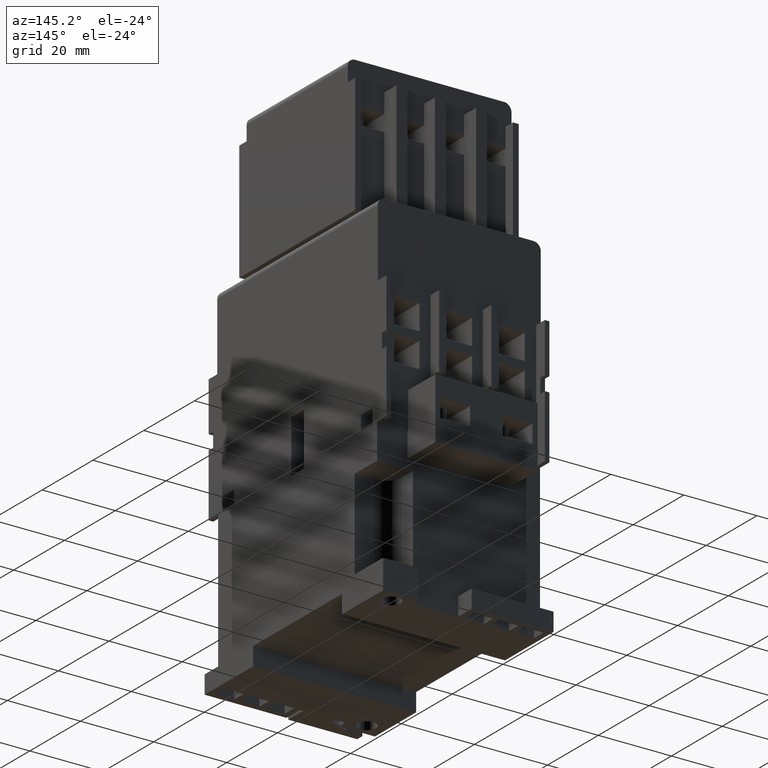
[diagram: clean part render]
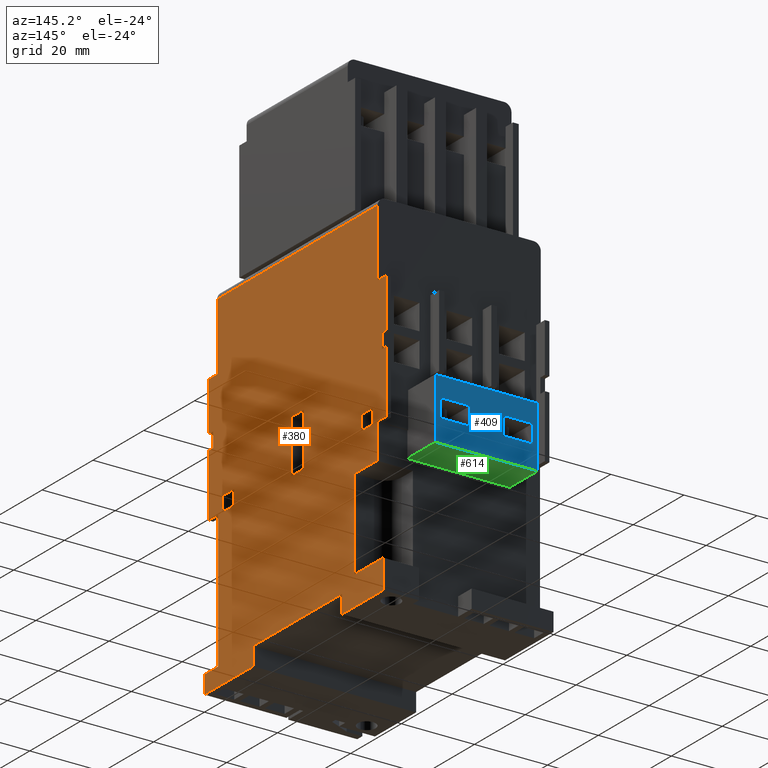
[diagram: same view with three faces highlighted in distinct colors, each labeled with its STEP entity id]
A machine part, auxiliary view with three faces highlighted in distinct colors.
Their STEP definitions:

[orange] entity #380 — the highlighted planar face has unit normal (1, 0, 0).
#163=FACE_BOUND('',#2069,.T.);
#164=FACE_BOUND('',#2070,.T.);
#165=FACE_BOUND('',#2071,.T.);
#166=FACE_BOUND('',#2072,.T.);
#380=ADVANCED_FACE('',(#163,#164,#165,#166),#989,.T.);
#989=PLANE('',#11495);
#2069=EDGE_LOOP('',(#3105,#3106,#3107,#3108,#3109,#3110,#3111,#3112,#3113,
#3114,#3115,#3116,#3117,#3118,#3119,#3120,#3121,#3122,#3123,#3124,#3125,
#3126,#3127,#3128,#3129,#3130,#3131,#3132,#3133,#3134));
#2070=EDGE_LOOP('',(#3135,#3136,#3137,#3138));
#2071=EDGE_LOOP('',(#3139,#3140,#3141,#3142));
#2072=EDGE_LOOP('',(#3143,#3144,#3145,#3146));
#3105=ORIENTED_EDGE('',*,*,#7302,.T.);
#3106=ORIENTED_EDGE('',*,*,#7303,.T.);
#3107=ORIENTED_EDGE('',*,*,#7304,.T.);
#3108=ORIENTED_EDGE('',*,*,#7305,.T.);
#3109=ORIENTED_EDGE('',*,*,#7306,.T.);
#3110=ORIENTED_EDGE('',*,*,#7307,.T.);
#3111=ORIENTED_EDGE('',*,*,#7308,.T.);
#3112=ORIENTED_EDGE('',*,*,#7309,.T.);
#3113=ORIENTED_EDGE('',*,*,#7310,.F.);
#3114=ORIENTED_EDGE('',*,*,#7311,.F.);
#3115=ORIENTED_EDGE('',*,*,#7312,.F.);
#3116=ORIENTED_EDGE('',*,*,#7313,.F.);
#3117=ORIENTED_EDGE('',*,*,#7314,.F.);
#3118=ORIENTED_EDGE('',*,*,#7315,.F.);
#3119=ORIENTED_EDGE('',*,*,#7316,.F.);
#3120=ORIENTED_EDGE('',*,*,#7317,.F.);
#3121=ORIENTED_EDGE('',*,*,#7318,.F.);
#3122=ORIENTED_EDGE('',*,*,#7319,.F.);
#3123=ORIENTED_EDGE('',*,*,#7320,.F.);
#3124=ORIENTED_EDGE('',*,*,#7321,.F.);
#3125=ORIENTED_EDGE('',*,*,#7322,.F.);
#3126=ORIENTED_EDGE('',*,*,#7323,.T.);
#3127=ORIENTED_EDGE('',*,*,#7324,.T.);
#3128=ORIENTED_EDGE('',*,*,#7325,.T.);
#3129=ORIENTED_EDGE('',*,*,#7326,.F.);
#3130=ORIENTED_EDGE('',*,*,#7327,.T.);
#3131=ORIENTED_EDGE('',*,*,#7328,.F.);
#3132=ORIENTED_EDGE('',*,*,#7329,.T.);
#3133=ORIENTED_EDGE('',*,*,#7330,.T.);
#3134=ORIENTED_EDGE('',*,*,#7331,.T.);
#3135=ORIENTED_EDGE('',*,*,#7332,.F.);
#3136=ORIENTED_EDGE('',*,*,#7333,.F.);
#3137=ORIENTED_EDGE('',*,*,#7334,.F.);
#3138=ORIENTED_EDGE('',*,*,#7335,.F.);
#3139=ORIENTED_EDGE('',*,*,#7336,.F.);
#3140=ORIENTED_EDGE('',*,*,#7337,.F.);
#3141=ORIENTED_EDGE('',*,*,#7338,.F.);
#3142=ORIENTED_EDGE('',*,*,#7339,.F.);
#3143=ORIENTED_EDGE('',*,*,#7340,.T.);
#3144=ORIENTED_EDGE('',*,*,#7341,.T.);
#3145=ORIENTED_EDGE('',*,*,#7342,.T.);
#3146=ORIENTED_EDGE('',*,*,#7343,.T.);
#6237=VERTEX_POINT('',#15504);
#6238=VERTEX_POINT('',#15505);
#6239=VERTEX_POINT('',#15507);
#6240=VERTEX_POINT('',#15509);
#6241=VERTEX_POINT('',#15511);
#6242=VERTEX_POINT('',#15513);
#6243=VERTEX_POINT('',#15515);
#6244=VERTEX_POINT('',#15517);
#6245=VERTEX_POINT('',#15519);
#6246=VERTEX_POINT('',#15521);
#6247=VERTEX_POINT('',#15523);
#6248=VERTEX_POINT('',#15525);
#6249=VERTEX_POINT('',#15527);
#6250=VERTEX_POINT('',#15529);
#6251=VERTEX_POINT('',#15531);
#6252=VERTEX_POINT('',#15533);
#6253=VERTEX_POINT('',#15535);
#6254=VERTEX_POINT('',#15537);
#6255=VERTEX_POINT('',#15539);
#6256=VERTEX_POINT('',#15541);
#6257=VERTEX_POINT('',#15543);
#6258=VERTEX_POINT('',#15545);
#6259=VERTEX_POINT('',#15547);
#6260=VERTEX_POINT('',#15549);
#6261=VERTEX_POINT('',#15551);
#6262=VERTEX_POINT('',#15553);
#6263=VERTEX_POINT('',#15555);
#6264=VERTEX_POINT('',#15557);
#6265=VERTEX_POINT('',#15559);
#6266=VERTEX_POINT('',#15561);
#6267=VERTEX_POINT('',#15564);
#6268=VERTEX_POINT('',#15565);
#6269=VERTEX_POINT('',#15567);
#6270=VERTEX_POINT('',#15569);
#6271=VERTEX_POINT('',#15572);
#6272=VERTEX_POINT('',#15573);
#6273=VERTEX_POINT('',#15575);
#6274=VERTEX_POINT('',#15577);
#6275=VERTEX_POINT('',#15580);
#6276=VERTEX_POINT('',#15581);
#6277=VERTEX_POINT('',#15583);
#6278=VERTEX_POINT('',#15585);
#7302=EDGE_CURVE('',#6237,#6238,#8865,.T.);
#7303=EDGE_CURVE('',#6238,#6239,#8866,.T.);
#7304=EDGE_CURVE('',#6239,#6240,#8867,.T.);
#7305=EDGE_CURVE('',#6240,#6241,#8868,.T.);
#7306=EDGE_CURVE('',#6241,#6242,#8869,.T.);
#7307=EDGE_CURVE('',#6242,#6243,#8870,.T.);
#7308=EDGE_CURVE('',#6243,#6244,#8871,.T.);
#7309=EDGE_CURVE('',#6244,#6245,#8872,.T.);
#7310=EDGE_CURVE('',#6246,#6245,#8873,.T.);
#7311=EDGE_CURVE('',#6247,#6246,#8874,.T.);
#7312=EDGE_CURVE('',#6248,#6247,#8875,.T.);
#7313=EDGE_CURVE('',#6249,#6248,#8876,.T.);
#7314=EDGE_CURVE('',#6250,#6249,#8877,.T.);
#7315=EDGE_CURVE('',#6251,#6250,#8878,.T.);
#7316=EDGE_CURVE('',#6252,#6251,#8879,.T.);
#7317=EDGE_CURVE('',#6253,#6252,#8880,.T.);
#7318=EDGE_CURVE('',#6254,#6253,#8881,.T.);
#7319=EDGE_CURVE('',#6255,#6254,#8882,.T.);
#7320=EDGE_CURVE('',#6256,#6255,#8883,.T.);
#7321=EDGE_CURVE('',#6257,#6256,#8884,.T.);
#7322=EDGE_CURVE('',#6258,#6257,#8885,.T.);
#7323=EDGE_CURVE('',#6258,#6259,#8886,.T.);
#7324=EDGE_CURVE('',#6259,#6260,#8887,.T.);
#7325=EDGE_CURVE('',#6260,#6261,#8888,.T.);
#7326=EDGE_CURVE('',#6262,#6261,#8889,.T.);
#7327=EDGE_CURVE('',#6262,#6263,#8890,.T.);
#7328=EDGE_CURVE('',#6264,#6263,#8891,.T.);
#7329=EDGE_CURVE('',#6264,#6265,#8892,.T.);
#7330=EDGE_CURVE('',#6265,#6266,#8893,.T.);
#7331=EDGE_CURVE('',#6266,#6237,#8894,.T.);
#7332=EDGE_CURVE('',#6267,#6268,#8895,.T.);
#7333=EDGE_CURVE('',#6269,#6267,#8896,.T.);
#7334=EDGE_CURVE('',#6270,#6269,#8897,.T.);
#7335=EDGE_CURVE('',#6268,#6270,#8898,.T.);
#7336=EDGE_CURVE('',#6271,#6272,#8899,.T.);
#7337=EDGE_CURVE('',#6273,#6271,#8900,.T.);
#7338=EDGE_CURVE('',#6274,#6273,#8901,.T.);
#7339=EDGE_CURVE('',#6272,#6274,#8902,.T.);
#7340=EDGE_CURVE('',#6275,#6276,#8903,.T.);
#7341=EDGE_CURVE('',#6276,#6277,#8904,.T.);
#7342=EDGE_CURVE('',#6277,#6278,#8905,.T.);
#7343=EDGE_CURVE('',#6278,#6275,#8906,.T.);
#8865=LINE('',#15503,#10216);
#8866=LINE('',#15506,#10217);
#8867=LINE('',#15508,#10218);
#8868=LINE('',#15510,#10219);
#8869=LINE('',#15512,#10220);
#8870=LINE('',#15514,#10221);
#8871=LINE('',#15516,#10222);
#8872=LINE('',#15518,#10223);
#8873=LINE('',#15520,#10224);
#8874=LINE('',#15522,#10225);
#8875=LINE('',#15524,#10226);
#8876=LINE('',#15526,#10227);
#8877=LINE('',#15528,#10228);
#8878=LINE('',#15530,#10229);
#8879=LINE('',#15532,#10230);
#8880=LINE('',#15534,#10231);
#8881=LINE('',#15536,#10232);
#8882=LINE('',#15538,#10233);
#8883=LINE('',#15540,#10234);
#8884=LINE('',#15542,#10235);
#8885=LINE('',#15544,#10236);
#8886=LINE('',#15546,#10237);
#8887=LINE('',#15548,#10238);
#8888=LINE('',#15550,#10239);
#8889=LINE('',#15552,#10240);
#8890=LINE('',#15554,#10241);
#8891=LINE('',#15556,#10242);
#8892=LINE('',#15558,#10243);
#8893=LINE('',#15560,#10244);
#8894=LINE('',#15562,#10245);
#8895=LINE('',#15563,#10246);
#8896=LINE('',#15566,#10247);
#8897=LINE('',#15568,#10248);
#8898=LINE('',#15570,#10249);
#8899=LINE('',#15571,#10250);
#8900=LINE('',#15574,#10251);
#8901=LINE('',#15576,#10252);
#8902=LINE('',#15578,#10253);
#8903=LINE('',#15579,#10254);
#8904=LINE('',#15582,#10255);
#8905=LINE('',#15584,#10256);
#8906=LINE('',#15586,#10257);
#10216=VECTOR('',#12421,1.);
#10217=VECTOR('',#12422,1.);
#10218=VECTOR('',#12423,1.);
#10219=VECTOR('',#12424,1.);
#10220=VECTOR('',#12425,1.);
#10221=VECTOR('',#12426,1.);
#10222=VECTOR('',#12427,1.);
#10223=VECTOR('',#12428,1.);
#10224=VECTOR('',#12429,1.);
#10225=VECTOR('',#12430,1.);
#10226=VECTOR('',#12431,1.);
#10227=VECTOR('',#12432,1.);
#10228=VECTOR('',#12433,1.);
#10229=VECTOR('',#12434,1.);
#10230=VECTOR('',#12435,1.);
#10231=VECTOR('',#12436,1.);
#10232=VECTOR('',#12437,1.);
#10233=VECTOR('',#12438,1.);
#10234=VECTOR('',#12439,1.);
#10235=VECTOR('',#12440,1.);
#10236=VECTOR('',#12441,1.);
#10237=VECTOR('',#12442,1.);
#10238=VECTOR('',#12443,1.);
#10239=VECTOR('',#12444,1.);
#10240=VECTOR('',#12445,1.);
#10241=VECTOR('',#12446,1.);
#10242=VECTOR('',#12447,1.);
#10243=VECTOR('',#12448,1.);
#10244=VECTOR('',#12449,1.);
#10245=VECTOR('',#12450,1.);
#10246=VECTOR('',#12451,1.);
#10247=VECTOR('',#12452,1.);
#10248=VECTOR('',#12453,1.);
#10249=VECTOR('',#12454,1.);
#10250=VECTOR('',#12455,1.);
#10251=VECTOR('',#12456,1.);
#10252=VECTOR('',#12457,1.);
#10253=VECTOR('',#12458,1.);
#10254=VECTOR('',#12459,1.);
#10255=VECTOR('',#12460,1.);
#10256=VECTOR('',#12461,1.);
#10257=VECTOR('',#12462,1.);
#11495=AXIS2_PLACEMENT_3D('',#15587,#12463,#12464);
#12421=DIRECTION('',(0.,0.,1.));
#12422=DIRECTION('',(0.,-1.,0.));
#12423=DIRECTION('',(0.,0.,1.));
#12424=DIRECTION('',(0.,1.,0.));
#12425=DIRECTION('',(0.,0.,1.));
#12426=DIRECTION('',(0.,-1.,0.));
#12427=DIRECTION('',(0.,0.,1.));
#12428=DIRECTION('',(0.,-1.,0.));
#12429=DIRECTION('',(0.,0.,1.));
#12430=DIRECTION('',(0.,1.,0.));
#12431=DIRECTION('',(0.,0.,1.));
#12432=DIRECTION('',(0.,-1.,0.));
#12433=DIRECTION('',(0.,0.,1.));
#12434=DIRECTION('',(0.,1.,0.));
#12435=DIRECTION('',(0.,0.,1.));
#12436=DIRECTION('',(0.,-1.,0.));
#12437=DIRECTION('',(0.,3.72058654364999E-016,1.));
#12438=DIRECTION('',(0.,1.,0.));
#12439=DIRECTION('',(0.,0.,1.));
#12440=DIRECTION('',(0.,-1.,1.81646437275058E-016));
#12441=DIRECTION('',(0.,0.,-1.));
#12442=DIRECTION('',(0.,1.,1.22464679914735E-016));
#12443=DIRECTION('',(0.,0.,-1.));
#12444=DIRECTION('',(0.,1.,1.81646437275058E-016));
#12445=DIRECTION('',(0.,0.,-1.));
#12446=DIRECTION('',(0.,-1.,0.));
#12447=DIRECTION('',(0.,0.,-1.));
#12448=DIRECTION('',(0.,1.,4.38553687746945E-016));
#12449=DIRECTION('',(0.,-3.72058654364999E-016,1.));
#12450=DIRECTION('',(0.,1.,0.));
#12451=DIRECTION('',(0.,0.,-1.));
#12452=DIRECTION('',(0.,-1.,0.));
#12453=DIRECTION('',(0.,0.,1.));
#12454=DIRECTION('',(0.,1.,0.));
#12455=DIRECTION('',(0.,-1.4954512723938E-016,-1.));
#12456=DIRECTION('',(0.,-1.,0.));
#12457=DIRECTION('',(0.,5.9818050895752E-017,1.));
#12458=DIRECTION('',(0.,1.,0.));
#12459=DIRECTION('',(0.,0.,1.));
#12460=DIRECTION('',(0.,1.,0.));
#12461=DIRECTION('',(0.,0.,-1.));
#12462=DIRECTION('',(0.,-1.,0.));
#12463=DIRECTION('',(1.,0.,0.));
#12464=DIRECTION('',(0.,0.,-1.));
#15503=CARTESIAN_POINT('',(22.3,35.,37.3));
#15504=CARTESIAN_POINT('',(22.3,35.,37.3));
#15505=CARTESIAN_POINT('',(22.3,35.,54.5));
#15506=CARTESIAN_POINT('',(22.3,35.,54.5));
#15507=CARTESIAN_POINT('',(22.3,33.25,54.5));
#15508=CARTESIAN_POINT('',(22.3,33.25,54.5));
#15509=CARTESIAN_POINT('',(22.3,33.25,58.5));
#15510=CARTESIAN_POINT('',(22.3,33.25,58.5));
#15511=CARTESIAN_POINT('',(22.3,35.,58.5));
#15512=CARTESIAN_POINT('',(22.3,35.,37.3));
#15513=CARTESIAN_POINT('',(22.3,35.,72.));
#15514=CARTESIAN_POINT('',(22.3,35.,72.));
#15515=CARTESIAN_POINT('',(22.3,31.6,72.));
#15516=CARTESIAN_POINT('',(22.3,31.6,72.));
#15517=CARTESIAN_POINT('',(22.3,31.6,90.5));
#15518=CARTESIAN_POINT('',(22.3,1.83880688453542E-012,90.5));
#15519=CARTESIAN_POINT('',(22.3,-31.6,90.5));
#15520=CARTESIAN_POINT('',(22.3,-31.6,72.));
#15521=CARTESIAN_POINT('',(22.3,-31.6,72.));
#15522=CARTESIAN_POINT('',(22.3,-35.,72.));
#15523=CARTESIAN_POINT('',(22.3,-35.,72.));
#15524=CARTESIAN_POINT('',(22.3,-35.,37.3));
#15525=CARTESIAN_POINT('',(22.3,-34.9999999999988,58.5000000000003));
#15526=CARTESIAN_POINT('',(22.3,-33.2499999999988,58.5000000000003));
#15527=CARTESIAN_POINT('',(22.3,-33.2499999999988,58.5000000000003));
#15528=CARTESIAN_POINT('',(22.3,-33.2499999999988,54.5000000000003));
#15529=CARTESIAN_POINT('',(22.3,-33.2499999999988,54.5000000000003));
#15530=CARTESIAN_POINT('',(22.3,-34.9999999999988,54.5000000000003));
#15531=CARTESIAN_POINT('',(22.3,-34.9999999999988,54.5000000000003));
#15532=CARTESIAN_POINT('',(22.3,-35.,37.3));
#15533=CARTESIAN_POINT('',(22.3,-35.,37.3));
#15534=CARTESIAN_POINT('',(22.3,-31.3,37.3));
#15535=CARTESIAN_POINT('',(22.3,-31.3,37.3));
#15536=CARTESIAN_POINT('',(22.3,-31.3,7.10995103104489E-015));
#15537=CARTESIAN_POINT('',(22.3,-31.3,7.10995103104489E-015));
#15538=CARTESIAN_POINT('',(22.3,-36.6,7.10995103104489E-015));
#15539=CARTESIAN_POINT('',(22.3,-36.6,6.93889390390723E-015));
#15540=CARTESIAN_POINT('',(22.3,-36.6,-4.99999999999999));
#15541=CARTESIAN_POINT('',(22.3,-36.6,-4.99999999999999));
#15542=CARTESIAN_POINT('',(22.3,-17.5,-5.));
#15543=CARTESIAN_POINT('',(22.3,-17.5,-5.));
#15544=CARTESIAN_POINT('',(22.3,-17.5,2.14313189850787E-015));
#15545=CARTESIAN_POINT('',(22.3,-17.5,2.14313189850787E-015));
#15546=CARTESIAN_POINT('',(22.3,0.,0.));
#15547=CARTESIAN_POINT('',(22.3,17.5,2.14313189850787E-015));
#15548=CARTESIAN_POINT('',(22.3,17.5,2.14313189850787E-015));
#15549=CARTESIAN_POINT('',(22.3,17.5,-5.));
#15550=CARTESIAN_POINT('',(22.3,17.5,-5.));
#15551=CARTESIAN_POINT('',(22.3,33.7,-5.));
#15552=CARTESIAN_POINT('',(22.3,33.7,3.));
#15553=CARTESIAN_POINT('',(22.3,33.7,3.));
#15554=CARTESIAN_POINT('',(22.3,33.7,3.));
#15555=CARTESIAN_POINT('',(22.3,22.4,2.99999999999999));
#15556=CARTESIAN_POINT('',(22.3,22.4,27.75));
#15557=CARTESIAN_POINT('',(22.3,22.4,27.75));
#15558=CARTESIAN_POINT('',(22.3,22.4,27.75));
#15559=CARTESIAN_POINT('',(22.3,31.3,27.75));
#15560=CARTESIAN_POINT('',(22.3,31.3,7.10995103104489E-015));
#15561=CARTESIAN_POINT('',(22.3,31.3,37.3));
#15562=CARTESIAN_POINT('',(22.3,31.3,37.3));
#15563=CARTESIAN_POINT('',(22.3,25.,41.3));
#15564=CARTESIAN_POINT('',(22.3,25.,41.3));
#15565=CARTESIAN_POINT('',(22.3,25.,37.3));
#15566=CARTESIAN_POINT('',(22.3,29.5,41.3));
#15567=CARTESIAN_POINT('',(22.3,29.5,41.3));
#15568=CARTESIAN_POINT('',(22.3,29.5,37.3));
#15569=CARTESIAN_POINT('',(22.3,29.5,37.3));
#15570=CARTESIAN_POINT('',(22.3,25.,37.3));
#15571=CARTESIAN_POINT('',(22.3,-2.49999999999999,50.8));
#15572=CARTESIAN_POINT('',(22.3,-2.49999999999999,50.8));
#15573=CARTESIAN_POINT('',(22.3,-2.49999999999999,36.3));
#15574=CARTESIAN_POINT('',(22.3,2.50000000000001,50.8));
#15575=CARTESIAN_POINT('',(22.3,2.50000000000001,50.8));
#15576=CARTESIAN_POINT('',(22.3,2.50000000000001,36.3));
#15577=CARTESIAN_POINT('',(22.3,2.50000000000001,36.3));
#15578=CARTESIAN_POINT('',(22.3,-2.49999999999999,36.3));
#15579=CARTESIAN_POINT('',(22.3,-29.5,37.3));
#15580=CARTESIAN_POINT('',(22.3,-29.5,37.3));
#15581=CARTESIAN_POINT('',(22.3,-29.5,41.3));
#15582=CARTESIAN_POINT('',(22.3,-29.5,41.3));
#15583=CARTESIAN_POINT('',(22.3,-25.,41.3));
#15584=CARTESIAN_POINT('',(22.3,-25.,41.3));
#15585=CARTESIAN_POINT('',(22.3,-25.,37.3));
#15586=CARTESIAN_POINT('',(22.3,-25.,37.3));
#15587=CARTESIAN_POINT('',(22.3,1.83880688453542E-012,92.5));

[blue] entity #409 — the highlighted planar face has unit normal (0, 1, 0).
#203=FACE_BOUND('',#2126,.T.);
#204=FACE_BOUND('',#2127,.T.);
#205=FACE_BOUND('',#2128,.T.);
#409=ADVANCED_FACE('',(#203,#204,#205),#1018,.T.);
#1018=PLANE('',#11549);
#2126=EDGE_LOOP('',(#3419,#3420,#3421,#3422));
#2127=EDGE_LOOP('',(#3423,#3424,#3425,#3426));
#2128=EDGE_LOOP('',(#3427,#3428,#3429,#3430));
#3419=ORIENTED_EDGE('',*,*,#7575,.T.);
#3420=ORIENTED_EDGE('',*,*,#7576,.T.);
#3421=ORIENTED_EDGE('',*,*,#7577,.T.);
#3422=ORIENTED_EDGE('',*,*,#7548,.T.);
#3423=ORIENTED_EDGE('',*,*,#7578,.F.);
#3424=ORIENTED_EDGE('',*,*,#7579,.F.);
#3425=ORIENTED_EDGE('',*,*,#7511,.F.);
#3426=ORIENTED_EDGE('',*,*,#7580,.F.);
#3427=ORIENTED_EDGE('',*,*,#7581,.T.);
#3428=ORIENTED_EDGE('',*,*,#7506,.T.);
#3429=ORIENTED_EDGE('',*,*,#7582,.T.);
#3430=ORIENTED_EDGE('',*,*,#7501,.T.);
#6405=VERTEX_POINT('',#15884);
#6406=VERTEX_POINT('',#15885);
#6410=VERTEX_POINT('',#15895);
#6411=VERTEX_POINT('',#15896);
#6415=VERTEX_POINT('',#15906);
#6416=VERTEX_POINT('',#15907);
#6449=VERTEX_POINT('',#15979);
#6452=VERTEX_POINT('',#15984);
#6472=VERTEX_POINT('',#16041);
#6473=VERTEX_POINT('',#16043);
#6474=VERTEX_POINT('',#16046);
#6475=VERTEX_POINT('',#16047);
#7501=EDGE_CURVE('',#6405,#6406,#9056,.T.);
#7506=EDGE_CURVE('',#6410,#6411,#9060,.T.);
#7511=EDGE_CURVE('',#6415,#6416,#9064,.T.);
#7548=EDGE_CURVE('',#6449,#6452,#9087,.T.);
#7575=EDGE_CURVE('',#6452,#6472,#9113,.T.);
#7576=EDGE_CURVE('',#6472,#6473,#9114,.T.);
#7577=EDGE_CURVE('',#6473,#6449,#9115,.T.);
#7578=EDGE_CURVE('',#6474,#6475,#9116,.T.);
#7579=EDGE_CURVE('',#6416,#6474,#9117,.T.);
#7580=EDGE_CURVE('',#6475,#6415,#9118,.T.);
#7581=EDGE_CURVE('',#6406,#6410,#9119,.T.);
#7582=EDGE_CURVE('',#6411,#6405,#9120,.T.);
#9056=LINE('',#15883,#10407);
#9060=LINE('',#15894,#10411);
#9064=LINE('',#15905,#10415);
#9087=LINE('',#15985,#10438);
#9113=LINE('',#16040,#10464);
#9114=LINE('',#16042,#10465);
#9115=LINE('',#16044,#10466);
#9116=LINE('',#16045,#10467);
#9117=LINE('',#16048,#10468);
#9118=LINE('',#16049,#10469);
#9119=LINE('',#16050,#10470);
#9120=LINE('',#16051,#10471);
#10407=VECTOR('',#12654,1.);
#10411=VECTOR('',#12662,1.);
#10415=VECTOR('',#12670,1.);
#10438=VECTOR('',#12731,1.);
#10464=VECTOR('',#12777,1.);
#10465=VECTOR('',#12778,1.);
#10466=VECTOR('',#12779,1.);
#10467=VECTOR('',#12780,1.);
#10468=VECTOR('',#12781,1.);
#10469=VECTOR('',#12782,1.);
#10470=VECTOR('',#12783,1.);
#10471=VECTOR('',#12784,1.);
#11549=AXIS2_PLACEMENT_3D('',#16052,#12785,#12786);
#12654=DIRECTION('',(1.,0.,0.));
#12662=DIRECTION('',(-1.,0.,0.));
#12670=DIRECTION('',(1.,0.,0.));
#12731=DIRECTION('',(1.,0.,4.95635278850516E-016));
#12777=DIRECTION('',(0.,4.15502628976481E-016,-1.));
#12778=DIRECTION('',(-1.,0.,0.));
#12779=DIRECTION('',(0.,-4.15502628976481E-016,1.));
#12780=DIRECTION('',(-1.,0.,-8.56653568383608E-016));
#12781=DIRECTION('',(0.,0.,-1.));
#12782=DIRECTION('',(0.,0.,1.));
#12783=DIRECTION('',(0.,0.,1.));
#12784=DIRECTION('',(0.,0.,-1.));
#12785=DIRECTION('',(0.,1.,4.15502628976481E-016));
#12786=DIRECTION('',(0.,-4.16333634234434E-016,1.));
#15883=CARTESIAN_POINT('',(4.5,42.3,36.7));
#15884=CARTESIAN_POINT('',(4.5,42.3,36.7));
#15885=CARTESIAN_POINT('',(12.6,42.3,36.7));
#15894=CARTESIAN_POINT('',(12.6,42.3,41.7));
#15895=CARTESIAN_POINT('',(12.6,42.3,41.7));
#15896=CARTESIAN_POINT('',(4.5,42.3,41.7));
#15905=CARTESIAN_POINT('',(-12.6,42.3,41.7));
#15906=CARTESIAN_POINT('',(-12.6,42.3,41.7));
#15907=CARTESIAN_POINT('',(-4.5,42.3,41.7));
#15979=CARTESIAN_POINT('',(-14.,42.3,47.0999999999998));
#15984=CARTESIAN_POINT('',(14.,42.3,47.0999999999998));
#15985=CARTESIAN_POINT('',(-14.,42.3,47.0999999999998));
#16040=CARTESIAN_POINT('',(14.,42.3,47.0999999999998));
#16041=CARTESIAN_POINT('',(14.,42.3,30.3999999999998));
#16042=CARTESIAN_POINT('',(14.,42.3,30.3999999999998));
#16043=CARTESIAN_POINT('',(-14.,42.3,30.3999999999998));
#16044=CARTESIAN_POINT('',(-14.,42.3,30.3999999999998));
#16045=CARTESIAN_POINT('',(-4.5,42.3,36.7));
#16046=CARTESIAN_POINT('',(-4.5,42.3,36.7));
#16047=CARTESIAN_POINT('',(-12.6,42.3,36.7));
#16048=CARTESIAN_POINT('',(-4.5,42.3,41.7));
#16049=CARTESIAN_POINT('',(-12.6,42.3,36.7));
#16050=CARTESIAN_POINT('',(12.6,42.3,36.7));
#16051=CARTESIAN_POINT('',(4.5,42.3,41.7));
#16052=CARTESIAN_POINT('',(14.,42.3,30.3999999999998));

[green] entity #614 — the highlighted planar face has unit normal (0, 0, 1).
#614=ADVANCED_FACE('',(#1749),#1211,.F.);
#1211=PLANE('',#11822);
#1749=FACE_OUTER_BOUND('',#2359,.T.);
#2359=EDGE_LOOP('',(#4409,#4410,#4411,#4412));
#4409=ORIENTED_EDGE('',*,*,#8019,.T.);
#4410=ORIENTED_EDGE('',*,*,#7430,.T.);
#4411=ORIENTED_EDGE('',*,*,#8020,.F.);
#4412=ORIENTED_EDGE('',*,*,#7576,.F.);
#6349=VERTEX_POINT('',#15751);
#6350=VERTEX_POINT('',#15753);
#6472=VERTEX_POINT('',#16041);
#6473=VERTEX_POINT('',#16043);
#7430=EDGE_CURVE('',#6350,#6349,#8987,.T.);
#7576=EDGE_CURVE('',#6472,#6473,#9114,.T.);
#8019=EDGE_CURVE('',#6472,#6350,#9489,.T.);
#8020=EDGE_CURVE('',#6473,#6349,#9490,.T.);
#8987=LINE('',#15752,#10338);
#9114=LINE('',#16042,#10465);
#9489=LINE('',#16952,#10840);
#9490=LINE('',#16953,#10841);
#10338=VECTOR('',#12571,1.);
#10465=VECTOR('',#12778,1.);
#10840=VECTOR('',#13699,1.);
#10841=VECTOR('',#13700,1.);
#11822=AXIS2_PLACEMENT_3D('',#16954,#13701,#13702);
#12571=DIRECTION('',(-1.,0.,0.));
#12778=DIRECTION('',(-1.,0.,0.));
#13699=DIRECTION('',(0.,-1.,1.98789933463288E-014));
#13700=DIRECTION('',(0.,-1.,1.98789933463288E-014));
#13701=DIRECTION('',(0.,1.98789933463288E-014,1.));
#13702=DIRECTION('',(0.,-1.,1.98799310346942E-014));
#15751=CARTESIAN_POINT('',(-14.,31.3,30.4));
#15752=CARTESIAN_POINT('',(14.,31.3,30.4));
#15753=CARTESIAN_POINT('',(14.,31.3,30.4));
#16041=CARTESIAN_POINT('',(14.,42.3,30.3999999999998));
#16042=CARTESIAN_POINT('',(14.,42.3,30.3999999999998));
#16043=CARTESIAN_POINT('',(-14.,42.3,30.3999999999998));
#16952=CARTESIAN_POINT('',(14.,42.3,30.3999999999998));
#16953=CARTESIAN_POINT('',(-14.,42.3,30.3999999999998));
#16954=CARTESIAN_POINT('',(14.,42.3,30.3999999999998));